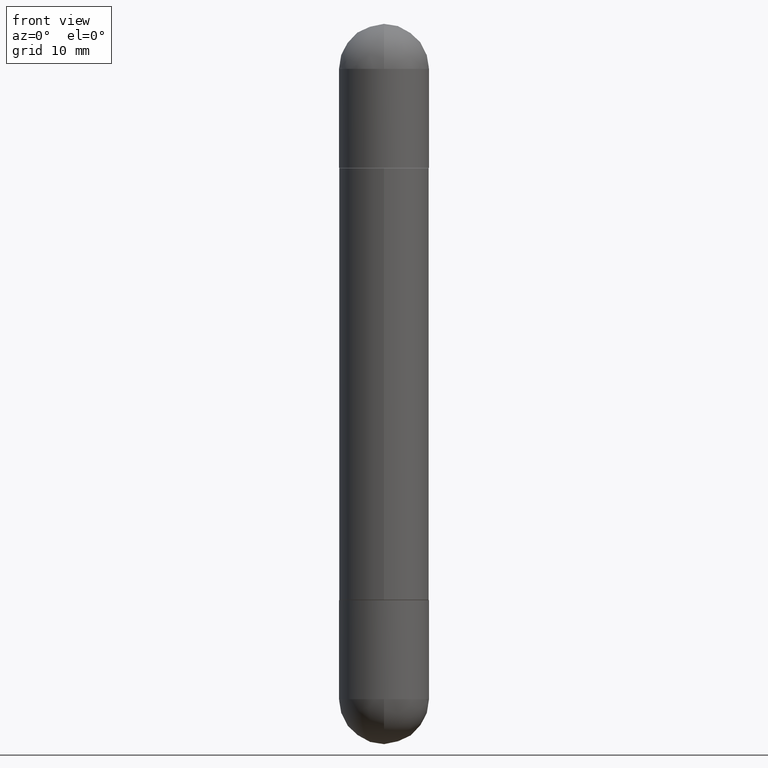
[diagram: clean part render]
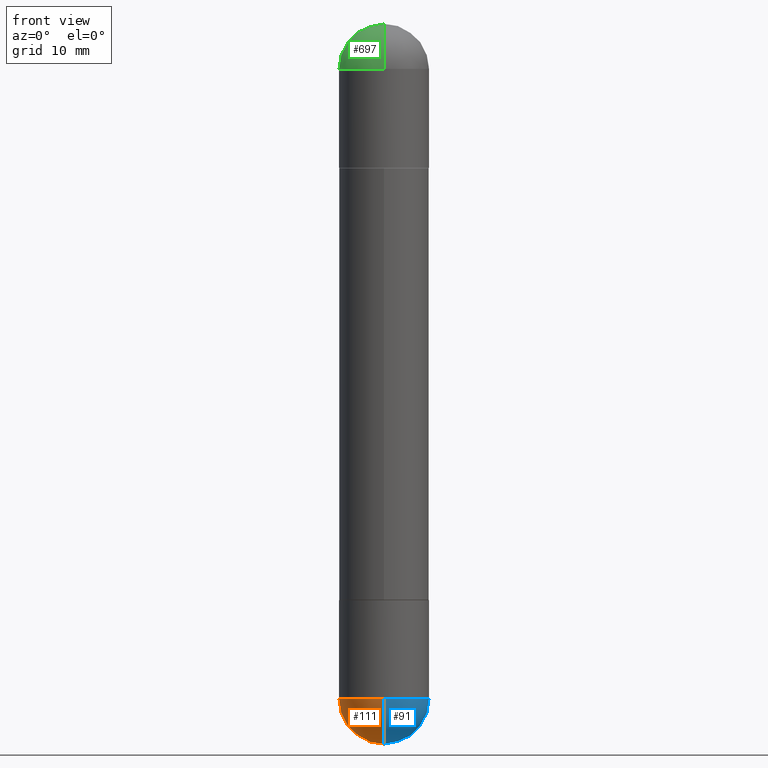
[diagram: same view with three faces highlighted in distinct colors, each labeled with its STEP entity id]
A machine part, front view with three faces highlighted in distinct colors.
Their STEP definitions:

[orange] entity #111 — the highlighted spherical surface has radius 3.9688 mm.
#27 = CARTESIAN_POINT ( 'NONE',  ( 5.400447736582527652E-29, -8.657341756053672891E-15, -2.343750000000000000 ) ) ;
#43 = CARTESIAN_POINT ( 'NONE',  ( 5.731567514496413899E-29, -8.183159387913622595E-15, -2.343750000000000000 ) ) ;
#62 = ORIENTED_EDGE ( 'NONE', *, *, #629, .T. ) ;
#77 = VERTEX_POINT ( 'NONE', #710 ) ;
#96 = DIRECTION ( 'NONE',  ( -2.445468806185136597E-29, 3.491481338843145583E-15, 1.000000000000000000 ) ) ;
#106 = DIRECTION ( 'NONE',  ( -2.445468806185136597E-29, 3.491481338843145583E-15, 1.000000000000000000 ) ) ;
#111 = ADVANCED_FACE ( 'NONE', ( #468 ), #537, .T. ) ;
#144 = CARTESIAN_POINT ( 'NONE',  ( -0.1562500000000000000, -6.472838008174800734E-15, -2.343750000000000000 ) ) ;
#159 = DIRECTION ( 'NONE',  ( -1.000000000000000000, 7.105427357601001070E-15, -4.926315508542082329E-29 ) ) ;
#211 = DIRECTION ( 'NONE',  ( -7.105427357601000281E-15, -1.000000000000000000, 0.000000000000000000 ) ) ;
#214 = CIRCLE ( 'NONE', #702, 0.1562500000000002498 ) ;
#241 = ORIENTED_EDGE ( 'NONE', *, *, #356, .F. ) ;
#265 = EDGE_CURVE ( 'NONE', #572, #77, #632, .T. ) ;
#290 = EDGE_LOOP ( 'NONE', ( #688, #62, #627, #241 ) ) ;
#355 = DIRECTION ( 'NONE',  ( 6.982962677686265922E-15, 1.000000000000000000, -3.496765431890251398E-15 ) ) ;
#356 = EDGE_CURVE ( 'NONE', #772, #572, #478, .T. ) ;
#362 = AXIS2_PLACEMENT_3D ( 'NONE', #593, #106, #366 ) ;
#366 = DIRECTION ( 'NONE',  ( 1.000000000000000000, -6.982962677686262766E-15, 0.000000000000000000 ) ) ;
#367 = VERTEX_POINT ( 'NONE', #667 ) ;
#399 = CARTESIAN_POINT ( 'NONE',  ( 5.400447736582527652E-29, -8.657341756053672891E-15, -2.343750000000000000 ) ) ;
#401 = AXIS2_PLACEMENT_3D ( 'NONE', #399, #159, #211 ) ;
#416 = DIRECTION ( 'NONE',  ( 1.000000000000000000, -6.982962677686265922E-15, 4.883557194083112340E-29 ) ) ;
#468 = FACE_OUTER_BOUND ( 'NONE', #290, .T. ) ;
#478 = CIRCLE ( 'NONE', #362, 0.1562500000000000000 ) ;
#526 = DIRECTION ( 'NONE',  ( 6.982962677686265922E-15, 1.000000000000000000, 0.000000000000000000 ) ) ;
#533 = CARTESIAN_POINT ( 'NONE',  ( 5.400447736582527652E-29, -8.657341756053672891E-15, -2.343750000000000000 ) ) ;
#537 = SPHERICAL_SURFACE ( 'NONE', #694, 0.1562500000000002498 ) ;
#570 = CIRCLE ( 'NONE', #401, 0.1562500000000002498 ) ;
#572 = VERTEX_POINT ( 'NONE', #144 ) ;
#593 = CARTESIAN_POINT ( 'NONE',  ( 5.731567514496413899E-29, -8.183159387913622595E-15, -2.343750000000000000 ) ) ;
#601 = DIRECTION ( 'NONE',  ( 1.000000000000000000, -6.982962677686262766E-15, 0.000000000000000000 ) ) ;
#627 = ORIENTED_EDGE ( 'NONE', *, *, #265, .F. ) ;
#629 = EDGE_CURVE ( 'NONE', #367, #77, #570, .T. ) ;
#632 = CIRCLE ( 'NONE', #769, 0.1562500000000000000 ) ;
#667 = CARTESIAN_POINT ( 'NONE',  ( 5.789233224183170584E-29, -9.193318162129576161E-15, -2.500000000000000000 ) ) ;
#685 = EDGE_CURVE ( 'NONE', #367, #772, #214, .T. ) ;
#688 = ORIENTED_EDGE ( 'NONE', *, *, #685, .F. ) ;
#694 = AXIS2_PLACEMENT_3D ( 'NONE', #533, #724, #355 ) ;
#702 = AXIS2_PLACEMENT_3D ( 'NONE', #27, #416, #526 ) ;
#710 = CARTESIAN_POINT ( 'NONE',  ( -1.110223024625101517E-15, -0.1562500000000085487, -2.343749999999999556 ) ) ;
#724 = DIRECTION ( 'NONE',  ( -1.000000000000000000, 6.982962677686265922E-15, -4.883557194083112340E-29 ) ) ;
#769 = AXIS2_PLACEMENT_3D ( 'NONE', #43, #96, #601 ) ;
#772 = VERTEX_POINT ( 'NONE', #805 ) ;
#805 = CARTESIAN_POINT ( 'NONE',  ( 1.091087918388535577E-15, 0.1562499999999916733, -2.343750000000000444 ) ) ;

[blue] entity #91 — the highlighted spherical surface has radius 3.9688 mm.
#17 = ORIENTED_EDGE ( 'NONE', *, *, #177, .F. ) ;
#27 = CARTESIAN_POINT ( 'NONE',  ( 5.400447736582527652E-29, -8.657341756053672891E-15, -2.343750000000000000 ) ) ;
#41 = DIRECTION ( 'NONE',  ( -2.445468806185136597E-29, 3.491481338843145583E-15, 1.000000000000000000 ) ) ;
#77 = VERTEX_POINT ( 'NONE', #710 ) ;
#91 = ADVANCED_FACE ( 'NONE', ( #92 ), #784, .T. ) ;
#92 = FACE_OUTER_BOUND ( 'NONE', #191, .T. ) ;
#102 = DIRECTION ( 'NONE',  ( 1.000000000000000000, -6.982962677686262766E-15, 0.000000000000000000 ) ) ;
#155 = AXIS2_PLACEMENT_3D ( 'NONE', #351, #41, #795 ) ;
#159 = DIRECTION ( 'NONE',  ( -1.000000000000000000, 7.105427357601001070E-15, -4.926315508542082329E-29 ) ) ;
#177 = EDGE_CURVE ( 'NONE', #77, #783, #762, .T. ) ;
#191 = EDGE_LOOP ( 'NONE', ( #764, #690, #392, #17 ) ) ;
#211 = DIRECTION ( 'NONE',  ( -7.105427357601000281E-15, -1.000000000000000000, 0.000000000000000000 ) ) ;
#214 = CIRCLE ( 'NONE', #702, 0.1562500000000002498 ) ;
#259 = EDGE_CURVE ( 'NONE', #783, #772, #518, .T. ) ;
#345 = CARTESIAN_POINT ( 'NONE',  ( 5.400447736582527652E-29, -8.657341756053672891E-15, -2.343750000000000000 ) ) ;
#347 = DIRECTION ( 'NONE',  ( -2.445468806185136597E-29, 3.491481338843145583E-15, 1.000000000000000000 ) ) ;
#351 = CARTESIAN_POINT ( 'NONE',  ( 5.731567514496413899E-29, -8.183159387913622595E-15, -2.343750000000000000 ) ) ;
#367 = VERTEX_POINT ( 'NONE', #667 ) ;
#392 = ORIENTED_EDGE ( 'NONE', *, *, #259, .F. ) ;
#399 = CARTESIAN_POINT ( 'NONE',  ( 5.400447736582527652E-29, -8.657341756053672891E-15, -2.343750000000000000 ) ) ;
#401 = AXIS2_PLACEMENT_3D ( 'NONE', #399, #159, #211 ) ;
#408 = CARTESIAN_POINT ( 'NONE',  ( 5.731567514496413899E-29, -8.183159387913622595E-15, -2.343750000000000000 ) ) ;
#416 = DIRECTION ( 'NONE',  ( 1.000000000000000000, -6.982962677686265922E-15, 4.883557194083112340E-29 ) ) ;
#458 = DIRECTION ( 'NONE',  ( 6.982962677686265922E-15, 1.000000000000000000, -3.496765431890251398E-15 ) ) ;
#518 = CIRCLE ( 'NONE', #683, 0.1562500000000000000 ) ;
#526 = DIRECTION ( 'NONE',  ( 6.982962677686265922E-15, 1.000000000000000000, 0.000000000000000000 ) ) ;
#570 = CIRCLE ( 'NONE', #401, 0.1562500000000002498 ) ;
#629 = EDGE_CURVE ( 'NONE', #367, #77, #570, .T. ) ;
#653 = AXIS2_PLACEMENT_3D ( 'NONE', #345, #775, #458 ) ;
#667 = CARTESIAN_POINT ( 'NONE',  ( 5.789233224183170584E-29, -9.193318162129576161E-15, -2.500000000000000000 ) ) ;
#677 = CARTESIAN_POINT ( 'NONE',  ( 0.1562500000000000000, -8.674148951188436448E-15, -2.343750000000000000 ) ) ;
#683 = AXIS2_PLACEMENT_3D ( 'NONE', #408, #347, #102 ) ;
#685 = EDGE_CURVE ( 'NONE', #367, #772, #214, .T. ) ;
#690 = ORIENTED_EDGE ( 'NONE', *, *, #685, .T. ) ;
#702 = AXIS2_PLACEMENT_3D ( 'NONE', #27, #416, #526 ) ;
#710 = CARTESIAN_POINT ( 'NONE',  ( -1.110223024625101517E-15, -0.1562500000000085487, -2.343749999999999556 ) ) ;
#762 = CIRCLE ( 'NONE', #155, 0.1562500000000000000 ) ;
#764 = ORIENTED_EDGE ( 'NONE', *, *, #629, .F. ) ;
#772 = VERTEX_POINT ( 'NONE', #805 ) ;
#775 = DIRECTION ( 'NONE',  ( -1.000000000000000000, 6.982962677686265922E-15, -4.883557194083112340E-29 ) ) ;
#783 = VERTEX_POINT ( 'NONE', #677 ) ;
#784 = SPHERICAL_SURFACE ( 'NONE', #653, 0.1562500000000002498 ) ;
#795 = DIRECTION ( 'NONE',  ( 1.000000000000000000, -6.982962677686262766E-15, 0.000000000000000000 ) ) ;
#805 = CARTESIAN_POINT ( 'NONE',  ( 1.091087918388535577E-15, 0.1562499999999916733, -2.343750000000000444 ) ) ;

[green] entity #697 — the highlighted spherical surface has radius 3.9688 mm.
#15 = DIRECTION ( 'NONE',  ( -1.000000000000000000, 6.982962677686265922E-15, 4.883557194083112340E-29 ) ) ;
#29 = EDGE_LOOP ( 'NONE', ( #370, #768, #357, #699 ) ) ;
#44 = DIRECTION ( 'NONE',  ( 6.982962677686265922E-15, 1.000000000000000000, 3.496765431890251398E-15 ) ) ;
#47 = CIRCLE ( 'NONE', #72, 0.1562500000000000000 ) ;
#72 = AXIS2_PLACEMENT_3D ( 'NONE', #156, #218, #99 ) ;
#75 = DIRECTION ( 'NONE',  ( 1.000000000000000000, -6.982962677686262766E-15, 0.000000000000000000 ) ) ;
#99 = DIRECTION ( 'NONE',  ( 1.000000000000000000, -6.982962677686262766E-15, 0.000000000000000000 ) ) ;
#108 = CARTESIAN_POINT ( 'NONE',  ( -1.071952812151746981E-15, -0.1562500000000085487, -0.1562500000000011102 ) ) ;
#130 = VERTEX_POINT ( 'NONE', #722 ) ;
#140 = CARTESIAN_POINT ( 'NONE',  ( 5.400447736582527652E-29, -8.657341756053672891E-15, -0.1562500000000005551 ) ) ;
#152 = FACE_OUTER_BOUND ( 'NONE', #29, .T. ) ;
#156 = CARTESIAN_POINT ( 'NONE',  ( 5.731567514496413899E-29, -8.183159387913622595E-15, -0.1562500000000005551 ) ) ;
#182 = DIRECTION ( 'NONE',  ( 1.000000000000000000, -6.982962677686265922E-15, -4.883557194083112340E-29 ) ) ;
#186 = VERTEX_POINT ( 'NONE', #108 ) ;
#194 = DIRECTION ( 'NONE',  ( 6.860497997771530774E-15, 1.000000000000000000, 0.000000000000000000 ) ) ;
#218 = DIRECTION ( 'NONE',  ( 2.445468806185136597E-29, -3.491481338843145583E-15, 1.000000000000000000 ) ) ;
#308 = VERTEX_POINT ( 'NONE', #726 ) ;
#338 = CARTESIAN_POINT ( 'NONE',  ( 1.091087918388535577E-15, 0.1562499999999916733, -0.1562500000000000000 ) ) ;
#357 = ORIENTED_EDGE ( 'NONE', *, *, #467, .T. ) ;
#370 = ORIENTED_EDGE ( 'NONE', *, *, #548, .F. ) ;
#390 = CIRCLE ( 'NONE', #594, 0.1562500000000002498 ) ;
#424 = EDGE_CURVE ( 'NONE', #130, #686, #452, .T. ) ;
#426 = CIRCLE ( 'NONE', #558, 0.1562500000000000000 ) ;
#432 = CARTESIAN_POINT ( 'NONE',  ( 5.400447736582527652E-29, -8.657341756053672891E-15, -0.1562500000000005551 ) ) ;
#451 = DIRECTION ( 'NONE',  ( 2.445468806185136597E-29, -3.491481338843145583E-15, 1.000000000000000000 ) ) ;
#452 = CIRCLE ( 'NONE', #529, 0.1562500000000002498 ) ;
#462 = AXIS2_PLACEMENT_3D ( 'NONE', #432, #182, #44 ) ;
#467 = EDGE_CURVE ( 'NONE', #686, #308, #426, .T. ) ;
#529 = AXIS2_PLACEMENT_3D ( 'NONE', #691, #15, #633 ) ;
#548 = EDGE_CURVE ( 'NONE', #130, #186, #390, .T. ) ;
#558 = AXIS2_PLACEMENT_3D ( 'NONE', #696, #451, #75 ) ;
#576 = DIRECTION ( 'NONE',  ( 1.000000000000000000, -6.860497997771530774E-15, -4.840798879624142912E-29 ) ) ;
#594 = AXIS2_PLACEMENT_3D ( 'NONE', #140, #576, #194 ) ;
#617 = EDGE_CURVE ( 'NONE', #308, #186, #47, .T. ) ;
#633 = DIRECTION ( 'NONE',  ( -6.982962677686265922E-15, -1.000000000000000000, 0.000000000000000000 ) ) ;
#686 = VERTEX_POINT ( 'NONE', #338 ) ;
#691 = CARTESIAN_POINT ( 'NONE',  ( 5.400447736582527652E-29, -8.657341756053672891E-15, -0.1562500000000005551 ) ) ;
#696 = CARTESIAN_POINT ( 'NONE',  ( 5.731567514496413899E-29, -8.183159387913622595E-15, -0.1562500000000005551 ) ) ;
#697 = ADVANCED_FACE ( 'NONE', ( #152 ), #741, .T. ) ;
#699 = ORIENTED_EDGE ( 'NONE', *, *, #617, .T. ) ;
#722 = CARTESIAN_POINT ( 'NONE',  ( 5.789233224183170584E-29, -9.193318162129576161E-15, -3.073328992872296367E-16 ) ) ;
#726 = CARTESIAN_POINT ( 'NONE',  ( -0.1562500000000000000, -6.511108220648156257E-15, -0.1562500000000005551 ) ) ;
#741 = SPHERICAL_SURFACE ( 'NONE', #462, 0.1562500000000002498 ) ;
#768 = ORIENTED_EDGE ( 'NONE', *, *, #424, .T. ) ;